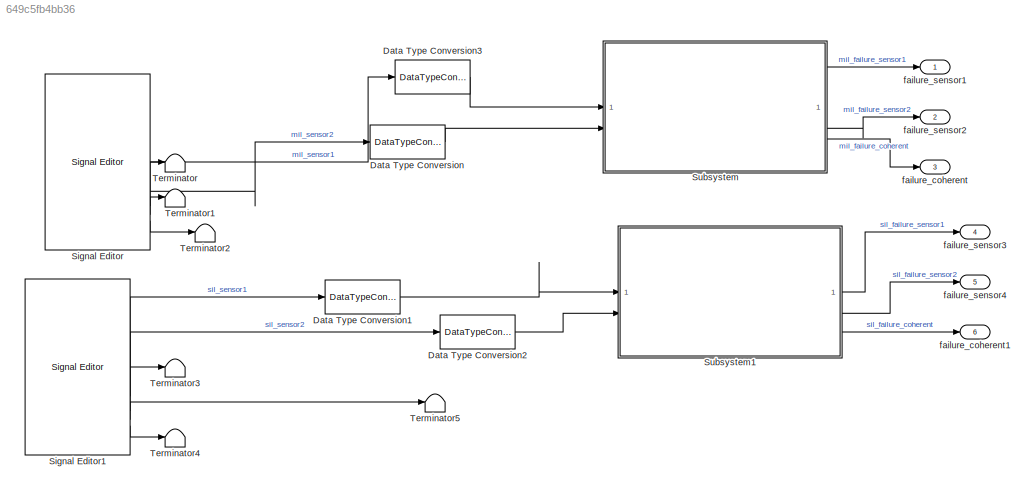
MODEL slx_649c5fb4bb36
KIND model
CONFIG AbsTol = auto
CONFIG EnableMultiTasking = off
CONFIG FixedStep = auto
CONFIG MaxStep = auto
CONFIG MinStep = auto
CONFIG RelTol = 1e-3
CONFIG SampleTimeConstraint = Unconstrained
CONFIG SolverName = FixedStepAuto
CONFIG StartTime = 0.0
CONFIG StopTime = 10.0
BLOCK [DataTypeConversion] Data Type Conversion
  OutDataTypeStr = single
  RndMeth = Floor
  SaturateOnIntegerOverflow = off
BLOCK [DataTypeConversion] Data Type Conversion1
  OutDataTypeStr = single
  RndMeth = Floor
  SaturateOnIntegerOverflow = off
BLOCK [DataTypeConversion] Data Type Conversion2
  OutDataTypeStr = single
  RndMeth = Floor
  SaturateOnIntegerOverflow = off
BLOCK [DataTypeConversion] Data Type Conversion3
  OutDataTypeStr = single
  RndMeth = Floor
  SaturateOnIntegerOverflow = off
BLOCK [Reference] Signal Editor  REF=SignalEditorBlockLib/Signal Editor
  LibrarySourceBlock = simulink/Sources/Signal Editor
  SourceBlock = SignalEditorBlockLib/Signal Editor
  SourceType = SignalEditor
  UserDataPersistent = on
BLOCK [Reference] Signal Editor1  REF=SignalEditorBlockLib/Signal Editor
  LibrarySourceBlock = simulink/Sources/Signal Editor
  SourceBlock = SignalEditorBlockLib/Signal Editor
  SourceType = SignalEditor
  UserDataPersistent = on
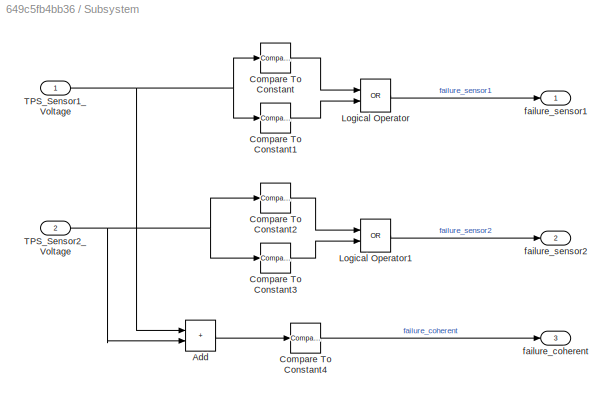
BLOCK [SubSystem] Subsystem
  TreatAsAtomicUnit = on
BLOCK [Sum] Subsystem/Add
  IconShape = rectangular
BLOCK [Reference] Subsystem/Compare To Constant  REF=simulink/Logic and Bit
Operations/Compare
To Constant
  SourceBlock = simulink/Logic and Bit\nOperations/Compare\nTo Constant
  SourceType = Compare To Constant
BLOCK [Reference] Subsystem/Compare To Constant1  REF=simulink/Logic and Bit
Operations/Compare
To Constant
  SourceBlock = simulink/Logic and Bit\nOperations/Compare\nTo Constant
  SourceType = Compare To Constant
BLOCK [Reference] Subsystem/Compare To Constant2  REF=simulink/Logic and Bit
Operations/Compare
To Constant
  SourceBlock = simulink/Logic and Bit\nOperations/Compare\nTo Constant
  SourceType = Compare To Constant
BLOCK [Reference] Subsystem/Compare To Constant3  REF=simulink/Logic and Bit
Operations/Compare
To Constant
  SourceBlock = simulink/Logic and Bit\nOperations/Compare\nTo Constant
  SourceType = Compare To Constant
BLOCK [Reference] Subsystem/Compare To Constant4  REF=simulink/Logic and Bit
Operations/Compare
To Constant
  SourceBlock = simulink/Logic and Bit\nOperations/Compare\nTo Constant
  SourceType = Compare To Constant
BLOCK [Logic] Subsystem/Logical Operator
  AllPortsSameDT = off
  Operator = OR
  OutDataTypeStr = boolean
BLOCK [Logic] Subsystem/Logical Operator1
  AllPortsSameDT = off
  Operator = OR
  OutDataTypeStr = boolean
BLOCK [Inport] Subsystem/TPS_Sensor1_Voltage
  OutDataTypeStr = single
BLOCK [Inport] Subsystem/TPS_Sensor2_Voltage
  OutDataTypeStr = single
  Port = 2
BLOCK [Outport] Subsystem/failure_coherent
  OutDataTypeStr = boolean
  Port = 3
BLOCK [Outport] Subsystem/failure_sensor1
  OutDataTypeStr = boolean
BLOCK [Outport] Subsystem/failure_sensor2
  OutDataTypeStr = boolean
  Port = 2
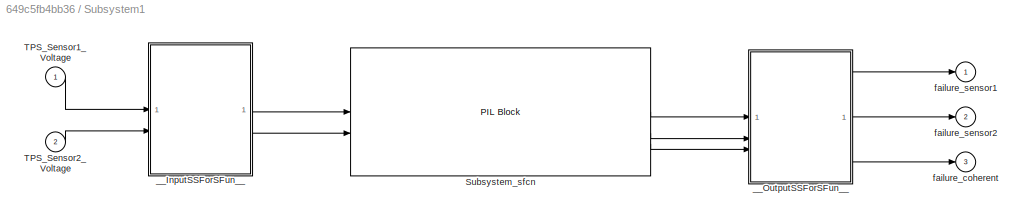
BLOCK [SubSystem] Subsystem1
  DialogController = pil_create_dialog
  LoadFcn = try\n   if ~strcmp(rtw.pil.getPILVersion, '24.1 (R2024a)_15')\n      set_param(gcb, 'DialogController', '');\n      set_param(gcb, 'DialogControllerArgs', '');\n   end\ncatch e\n      set_param(gcb, 'DialogController', '');\n      set_param(gcb, 'DialogControllerArgs', '');\nend
  Tag = __SL_testing_harness_stub_
BLOCK [Reference] Subsystem1/Subsystem_sfcn  REF=pil_lib/PIL Block
  SourceBlock = pil_lib/PIL Block
  SourceType = XILBlock
BLOCK [Inport] Subsystem1/TPS_Sensor1_Voltage
  OutDataTypeStr = single
BLOCK [Inport] Subsystem1/TPS_Sensor2_Voltage
  OutDataTypeStr = single
  Port = 2
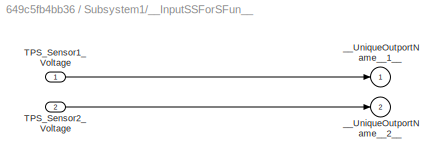
BLOCK [SubSystem] Subsystem1/__InputSSForSFun__
  PermitHierarchicalResolution = ExplicitOnly
BLOCK [Inport] Subsystem1/__InputSSForSFun__/TPS_Sensor1_Voltage
  OutDataTypeStr = single
BLOCK [Inport] Subsystem1/__InputSSForSFun__/TPS_Sensor2_Voltage
  OutDataTypeStr = single
  Port = 2
BLOCK [Outport] Subsystem1/__InputSSForSFun__/__UniqueOutportName__1__
BLOCK [Outport] Subsystem1/__InputSSForSFun__/__UniqueOutportName__2__
  Port = 2
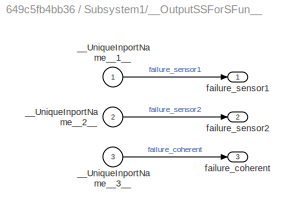
BLOCK [SubSystem] Subsystem1/__OutputSSForSFun__
  PermitHierarchicalResolution = ExplicitOnly
BLOCK [Inport] Subsystem1/__OutputSSForSFun__/__UniqueInportName__1__
BLOCK [Inport] Subsystem1/__OutputSSForSFun__/__UniqueInportName__2__
  Port = 2
BLOCK [Inport] Subsystem1/__OutputSSForSFun__/__UniqueInportName__3__
  Port = 3
BLOCK [Outport] Subsystem1/__OutputSSForSFun__/failure_coherent
  OutDataTypeStr = boolean
  Port = 3
BLOCK [Outport] Subsystem1/__OutputSSForSFun__/failure_sensor1
  OutDataTypeStr = boolean
BLOCK [Outport] Subsystem1/__OutputSSForSFun__/failure_sensor2
  OutDataTypeStr = boolean
  Port = 2
BLOCK [Outport] Subsystem1/failure_coherent
  OutDataTypeStr = boolean
  Port = 3
BLOCK [Outport] Subsystem1/failure_sensor1
  OutDataTypeStr = boolean
BLOCK [Outport] Subsystem1/failure_sensor2
  OutDataTypeStr = boolean
  Port = 2
BLOCK [Terminator] Terminator
BLOCK [Terminator] Terminator1
BLOCK [Terminator] Terminator2
BLOCK [Terminator] Terminator3
BLOCK [Terminator] Terminator4
BLOCK [Terminator] Terminator5
BLOCK [Outport] failure_coherent
  Port = 3
BLOCK [Outport] failure_coherent1
  Port = 6
BLOCK [Outport] failure_sensor1
BLOCK [Outport] failure_sensor2
  Port = 2
BLOCK [Outport] failure_sensor3
  Port = 4
BLOCK [Outport] failure_sensor4
  Port = 5
LINE Data Type Conversion1:1 -> Subsystem1:1
LINE Data Type Conversion2:1 -> Subsystem1:2
LINE Data Type Conversion3:1 -> Subsystem:1
LINE Data Type Conversion:1 -> Subsystem:2
LINE Signal Editor1:1 -> Data Type Conversion1:1
LINE Signal Editor1:2 -> Data Type Conversion2:1
LINE Signal Editor1:3 -> Terminator3:1
LINE Signal Editor1:4 -> Terminator5:1
LINE Signal Editor1:5 -> Terminator4:1
LINE Signal Editor:1 -> Data Type Conversion3:1
LINE Signal Editor:2 -> Data Type Conversion:1
LINE Signal Editor:3 -> Terminator:1
LINE Signal Editor:4 -> Terminator1:1
LINE Signal Editor:5 -> Terminator2:1
LINE Subsystem/Add:1 -> Subsystem/Compare To Constant4:1
LINE Subsystem/Compare To Constant1:1 -> Subsystem/Logical Operator:2
LINE Subsystem/Compare To Constant2:1 -> Subsystem/Logical Operator1:1
LINE Subsystem/Compare To Constant3:1 -> Subsystem/Logical Operator1:2
LINE Subsystem/Compare To Constant4:1 -> Subsystem/failure_coherent:1
LINE Subsystem/Compare To Constant:1 -> Subsystem/Logical Operator:1
LINE Subsystem/Logical Operator1:1 -> Subsystem/failure_sensor2:1
LINE Subsystem/Logical Operator:1 -> Subsystem/failure_sensor1:1
NET Subsystem/TPS_Sensor1_Voltage:1 -> Subsystem/Add:1, Subsystem/Compare To Constant1:1, Subsystem/Compare To Constant:1
NET Subsystem/TPS_Sensor2_Voltage:1 -> Subsystem/Add:2, Subsystem/Compare To Constant2:1, Subsystem/Compare To Constant3:1
LINE Subsystem1:1 -> failure_sensor3:1
LINE Subsystem1:2 -> failure_sensor4:1
LINE Subsystem1:3 -> failure_coherent1:1
LINE Subsystem:1 -> failure_sensor1:1
LINE Subsystem:2 -> failure_sensor2:1
LINE Subsystem:3 -> failure_coherent:1
note: NET lines group one-source signal fan-out (src -> all destinations, sorted); 1:1 wires keep LINE
